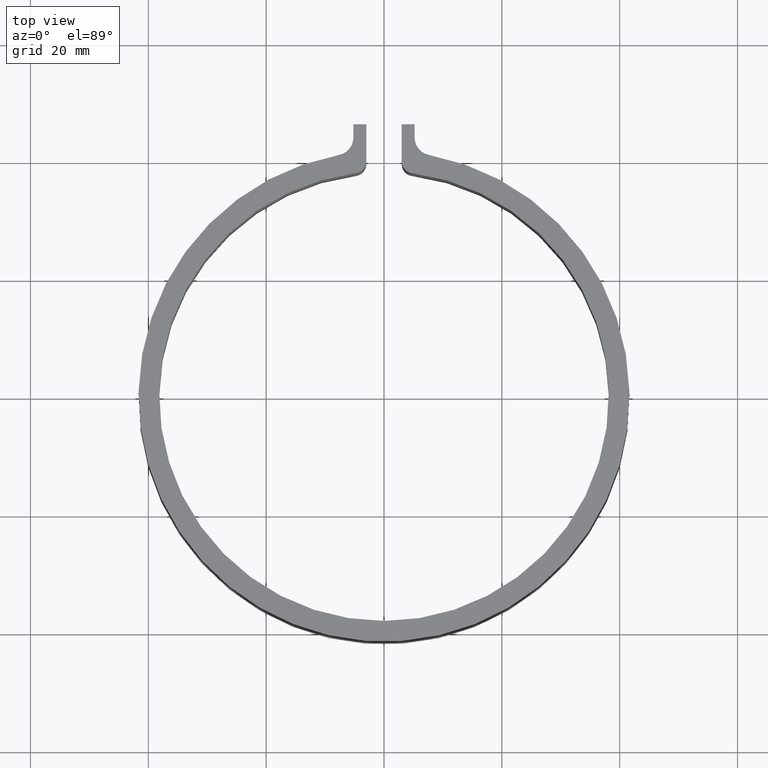
[diagram: clean part render]
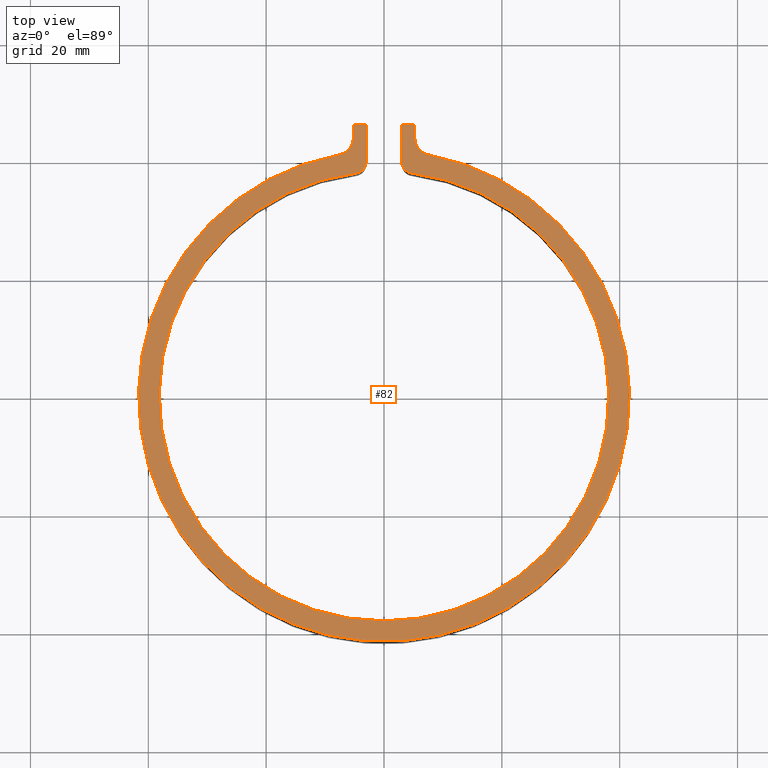
[diagram: same view with one face highlighted and labeled with its STEP entity id]
A machine part, top view. The second image highlights one B-rep face of the part: STEP entity #82.
In plain terms, the highlighted planar face has unit normal (0, 0, -1).
Its self-contained STEP definition (entity closure, byte-faithful):
#82 = ADVANCED_FACE( '', ( #116 ), #117, .F. );
#116 = FACE_OUTER_BOUND( '', #168, .T. );
#117 = PLANE( '', #169 );
#168 = EDGE_LOOP( '', ( #275, #276, #277, #278, #279, #280, #281, #282, #283, #284, #285, #286 ) );
#169 = AXIS2_PLACEMENT_3D( '', #287, #288, #289 );
#275 = ORIENTED_EDGE( '', *, *, #434, .T. );
#276 = ORIENTED_EDGE( '', *, *, #465, .T. );
#277 = ORIENTED_EDGE( '', *, *, #466, .T. );
#278 = ORIENTED_EDGE( '', *, *, #436, .T. );
#279 = ORIENTED_EDGE( '', *, *, #467, .T. );
#280 = ORIENTED_EDGE( '', *, *, #468, .T. );
#281 = ORIENTED_EDGE( '', *, *, #469, .T. );
#282 = ORIENTED_EDGE( '', *, *, #470, .T. );
#283 = ORIENTED_EDGE( '', *, *, #471, .T. );
#284 = ORIENTED_EDGE( '', *, *, #472, .T. );
#285 = ORIENTED_EDGE( '', *, *, #473, .T. );
#286 = ORIENTED_EDGE( '', *, *, #474, .T. );
#287 = CARTESIAN_POINT( '', ( 0.000000000000000, 0.000000000000000, 14.0000000000000 ) );
#288 = DIRECTION( '', ( 0.000000000000000, 0.000000000000000, -1.00000000000000 ) );
#289 = DIRECTION( '', ( -1.00000000000000, 6.07153216591882E-017, 0.000000000000000 ) );
#434 = EDGE_CURVE( '', #513, #511, #514, .T. );
#436 = EDGE_CURVE( '', #516, #517, #518, .T. );
#465 = EDGE_CURVE( '', #511, #567, #569, .F. );
#466 = EDGE_CURVE( '', #567, #516, #570, .T. );
#467 = EDGE_CURVE( '', #517, #571, #572, .T. );
#468 = EDGE_CURVE( '', #571, #573, #574, .T. );
#469 = EDGE_CURVE( '', #573, #575, #576, .T. );
#470 = EDGE_CURVE( '', #575, #577, #578, .T. );
#471 = EDGE_CURVE( '', #577, #579, #580, .T. );
#472 = EDGE_CURVE( '', #579, #581, #582, .T. );
#473 = EDGE_CURVE( '', #581, #583, #584, .T. );
#474 = EDGE_CURVE( '', #583, #513, #585, .F. );
#511 = VERTEX_POINT( '', #635 );
#513 = VERTEX_POINT( '', #638 );
#514 = CIRCLE( '', #639, 38.1500000000000 );
#516 = VERTEX_POINT( '', #642 );
#517 = VERTEX_POINT( '', #643 );
#518 = LINE( '', #644, #645 );
#567 = VERTEX_POINT( '', #710 );
#569 = CIRCLE( '', #713, 2.00000000000000 );
#570 = LINE( '', #714, #715 );
#571 = VERTEX_POINT( '', #716 );
#572 = LINE( '', #717, #718 );
#573 = VERTEX_POINT( '', #719 );
#574 = CIRCLE( '', #720, 3.00000000000000 );
#575 = VERTEX_POINT( '', #721 );
#576 = CIRCLE( '', #722, 41.6500000000000 );
#577 = VERTEX_POINT( '', #723 );
#578 = CIRCLE( '', #724, 3.00000000000000 );
#579 = VERTEX_POINT( '', #725 );
#580 = LINE( '', #726, #727 );
#581 = VERTEX_POINT( '', #728 );
#582 = LINE( '', #729, #730 );
#583 = VERTEX_POINT( '', #731 );
#584 = LINE( '', #732, #733 );
#585 = CIRCLE( '', #734, 2.00000000000000 );
#635 = CARTESIAN_POINT( '', ( -4.75093399750936, 37.8530200400352, 14.0000000000000 ) );
#638 = CARTESIAN_POINT( '', ( 4.75093399750934, 37.8530200400352, 14.0000000000000 ) );
#639 = AXIS2_PLACEMENT_3D( '', #796, #797, #798 );
#642 = CARTESIAN_POINT( '', ( -3.00000000000002, 46.1500000000000, 14.0000000000000 ) );
#643 = CARTESIAN_POINT( '', ( -5.20000000000000, 46.1500000000000, 14.0000000000000 ) );
#644 = CARTESIAN_POINT( '', ( -3.00000000000002, 46.1500000000000, 14.0000000000000 ) );
#645 = VECTOR( '', #800, 1000.00000000000 );
#710 = CARTESIAN_POINT( '', ( -3.00000000000002, 39.8374509726714, 14.0000000000000 ) );
#713 = AXIS2_PLACEMENT_3D( '', #851, #852, #853 );
#714 = CARTESIAN_POINT( '', ( -3.00000000000002, 38.0318616425754, 14.0000000000000 ) );
#715 = VECTOR( '', #854, 1000.00000000000 );
#716 = CARTESIAN_POINT( '', ( -5.20000000000000, 43.8905741589239, 14.0000000000000 ) );
#717 = CARTESIAN_POINT( '', ( -5.20000000000000, 46.1500000000000, 14.0000000000000 ) );
#718 = VECTOR( '', #855, 1000.00000000000 );
#719 = CARTESIAN_POINT( '', ( -7.64904815229563, 40.9415994114038, 14.0000000000000 ) );
#720 = AXIS2_PLACEMENT_3D( '', #856, #857, #858 );
#721 = CARTESIAN_POINT( '', ( 7.64904815229557, 40.9415994114038, 14.0000000000000 ) );
#722 = AXIS2_PLACEMENT_3D( '', #859, #860, #861 );
#723 = CARTESIAN_POINT( '', ( 5.19999999999999, 43.8905741589239, 14.0000000000000 ) );
#724 = AXIS2_PLACEMENT_3D( '', #862, #863, #864 );
#725 = CARTESIAN_POINT( '', ( 5.19999999999999, 46.1500000000000, 14.0000000000000 ) );
#726 = CARTESIAN_POINT( '', ( 5.19999999999999, 43.8905741589239, 14.0000000000000 ) );
#727 = VECTOR( '', #865, 1000.00000000000 );
#728 = CARTESIAN_POINT( '', ( 3.00000000000003, 46.1500000000000, 14.0000000000000 ) );
#729 = CARTESIAN_POINT( '', ( 4.00000000000002, 46.1500000000000, 14.0000000000000 ) );
#730 = VECTOR( '', #866, 1000.00000000000 );
#731 = CARTESIAN_POINT( '', ( 3.00000000000000, 39.8374509726714, 14.0000000000000 ) );
#732 = CARTESIAN_POINT( '', ( 3.00000000000000, 46.1500000000000, 14.0000000000000 ) );
#733 = VECTOR( '', #867, 1000.00000000000 );
#734 = AXIS2_PLACEMENT_3D( '', #868, #869, #870 );
#796 = CARTESIAN_POINT( '', ( 0.000000000000000, 0.000000000000000, 14.0000000000000 ) );
#797 = DIRECTION( '', ( 0.000000000000000, 0.000000000000000, -1.00000000000000 ) );
#798 = DIRECTION( '', ( 1.00000000000000, -6.07153216591882E-017, 0.000000000000000 ) );
#800 = DIRECTION( '', ( -1.00000000000000, 0.000000000000000, 0.000000000000000 ) );
#851 = CARTESIAN_POINT( '', ( -5.00000000000002, 39.8374509726714, 14.0000000000000 ) );
#852 = DIRECTION( '', ( 0.000000000000000, 0.000000000000000, -1.00000000000000 ) );
#853 = DIRECTION( '', ( -1.00000000000000, 0.000000000000000, 0.000000000000000 ) );
#854 = DIRECTION( '', ( 6.07153216591882E-017, 1.00000000000000, 0.000000000000000 ) );
#855 = DIRECTION( '', ( -6.50521303491303E-017, -1.00000000000000, 0.000000000000000 ) );
#856 = CARTESIAN_POINT( '', ( -8.20000000000000, 43.8905741589239, 14.0000000000000 ) );
#857 = DIRECTION( '', ( 0.000000000000000, 0.000000000000000, -1.00000000000000 ) );
#858 = DIRECTION( '', ( 1.00000000000000, 0.000000000000000, 0.000000000000000 ) );
#859 = CARTESIAN_POINT( '', ( 0.000000000000000, 0.000000000000000, 14.0000000000000 ) );
#860 = DIRECTION( '', ( 0.000000000000000, 0.000000000000000, 1.00000000000000 ) );
#861 = DIRECTION( '', ( 1.00000000000000, 0.000000000000000, 0.000000000000000 ) );
#862 = CARTESIAN_POINT( '', ( 8.19999999999999, 43.8905741589239, 14.0000000000000 ) );
#863 = DIRECTION( '', ( 0.000000000000000, 0.000000000000000, -1.00000000000000 ) );
#864 = DIRECTION( '', ( -1.00000000000000, 0.000000000000000, 0.000000000000000 ) );
#865 = DIRECTION( '', ( 6.50521303491303E-017, 1.00000000000000, 0.000000000000000 ) );
#866 = DIRECTION( '', ( -1.00000000000000, 0.000000000000000, 0.000000000000000 ) );
#867 = DIRECTION( '', ( -6.07153216591882E-017, -1.00000000000000, 0.000000000000000 ) );
#868 = CARTESIAN_POINT( '', ( 5.00000000000000, 39.8374509726714, 14.0000000000000 ) );
#869 = DIRECTION( '', ( 0.000000000000000, 0.000000000000000, -1.00000000000000 ) );
#870 = DIRECTION( '', ( -1.00000000000000, 0.000000000000000, 0.000000000000000 ) );